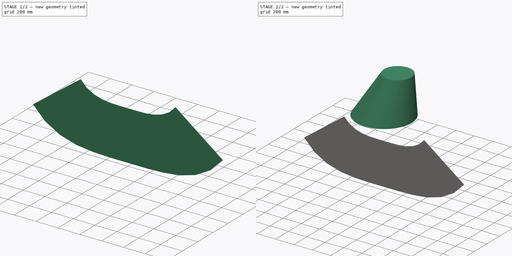
[diagram: build sequence overview — one tinted view per stage of 2, left to right]
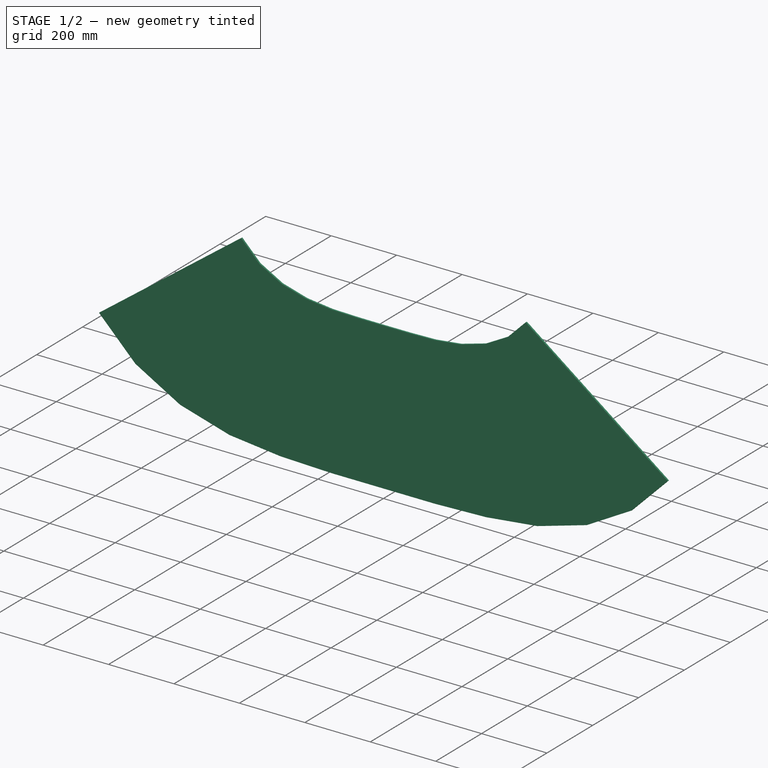
[diagram: stage 1 of 2 — iso view after this stage's code; geometry added in this stage tinted green]
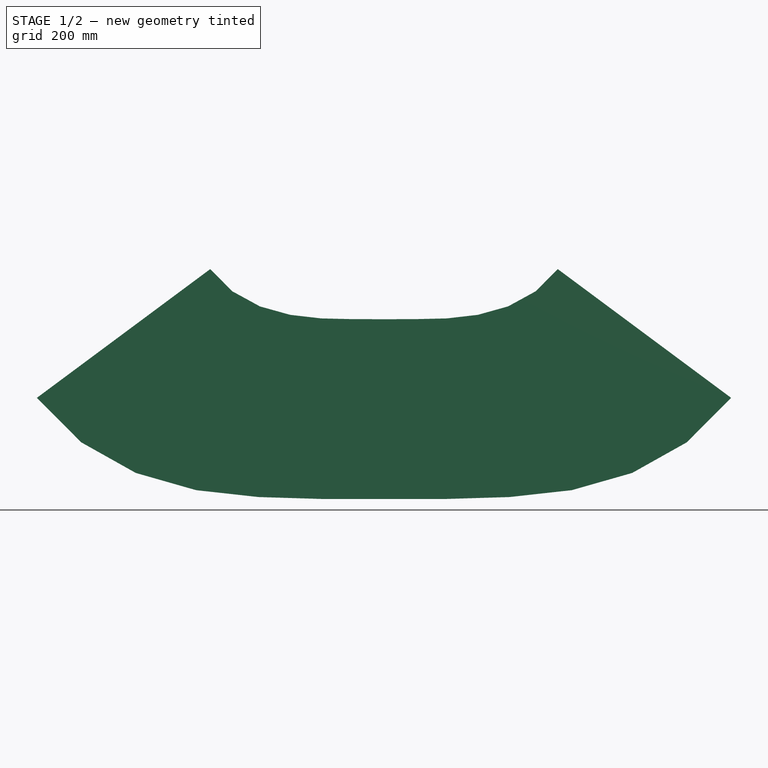
[diagram: stage 1 of 2 — front view after this stage's code; geometry added in this stage tinted green]
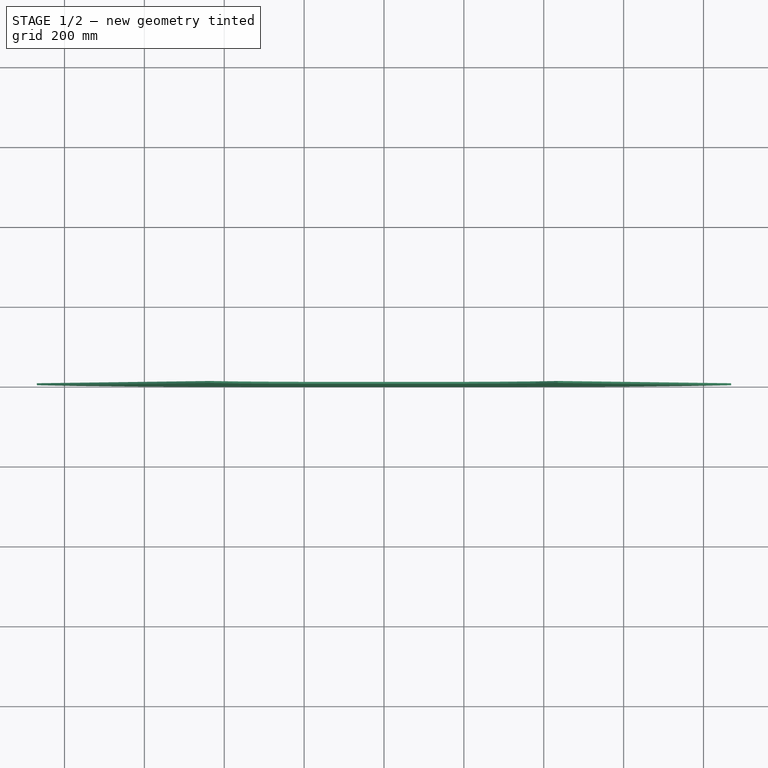
[diagram: stage 1 of 2 — top view after this stage's code; geometry added in this stage tinted green]
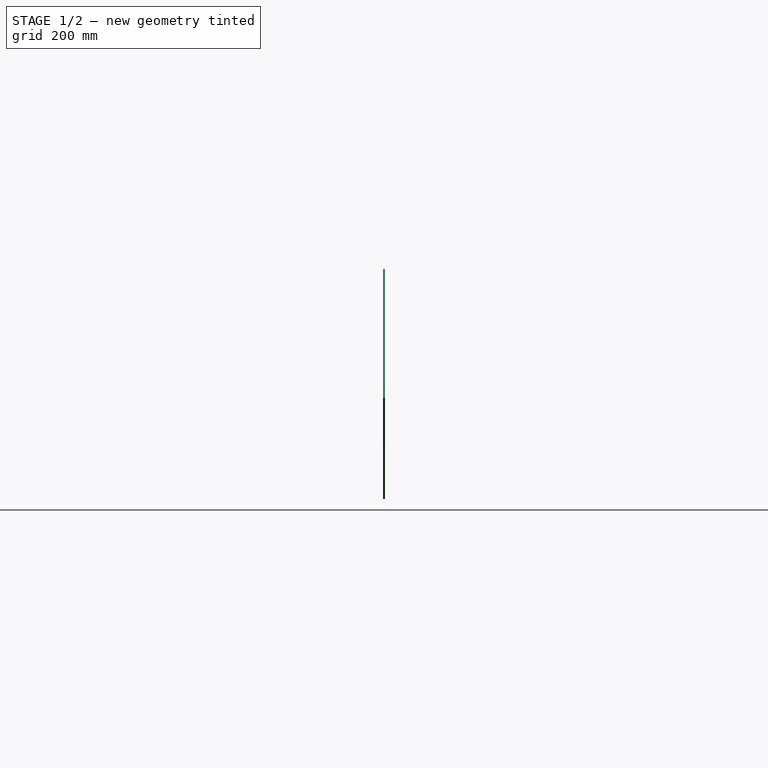
[diagram: stage 1 of 2 — right view after this stage's code; geometry added in this stage tinted green]
FCSTD DOCUMENT  (FreeCAD 0.18.2R)
Label: REDUÇÃO EXCENTRICA_1
License: All rights reserved
LicenseURL: http://en.wikipedia.org/wiki/All_rights_reserved
objects: App::FeaturePython×30, Part::Feature×11, Part::Mirroring×11, Part::RegularPolygon×2, Part::Loft×2, Part::Circle×2, Sketcher::SketchObject×1, PartDesign::Pad×1, PartDesign::Mirrored×1, PartDesign::Body×1, Part::Compound×1
note: 34 computed .brp shape members not serialized (recipe doc carries the construction recipe); baked Part::Feature solids carry a one-line shape summary decoded from their .brp

FEATURE [App::FeaturePython] Dimension013  # Draft dimension (typed FeaturePython)
  Diameter = false
  Dimline = (133,210,450)
  Direction = (0,0,0)
  Distance = 299.736
  End = (302.177,-2.437,453.784)
  Normal = (0,0,1)
  Start = (2.44333,-3.08407,453.071)
FEATURE [App::FeaturePython] Dimension014  # Draft dimension (typed FeaturePython)
  Diameter = true
  Dimline = (0,-350,0)
  Direction = (0,0,0)
  Distance = 600
  End = (-300,0,0)
  Normal = (0,0,1)
  Start = (300,0,0)
FEATURE [Sketcher::SketchObject] Sketch
  MapMode = 5
  Placement = pos=(0,0,0) rot=(1,0,0;1.5708rad)
  Support = -> [XZ_Plane]
  sketch-geometry (25):
    g0: LineSegment StartX=0 StartY=-258.7 StartZ=0 EndX=0 EndY=-708.7 EndZ=0
    g1: LineSegment [constr] StartX=0 StartY=-708.7 StartZ=0 EndX=-78.5397 EndY=-258.499 EndZ=0
    g2: LineSegment StartX=-78.5397 StartY=-258.499 StartZ=0 EndX=0 EndY=-258.7 EndZ=0
    g3: LineSegment [constr] StartX=-78.5397 StartY=-258.499 StartZ=0 EndX=-157.08 EndY=-708.7 EndZ=0
    g4: LineSegment StartX=-157.08 StartY=-708.7 StartZ=0 EndX=0 EndY=-708.7 EndZ=0
    g5: LineSegment [constr] StartX=-157.08 StartY=-708.7 StartZ=0 EndX=-157.059 EndY=-256.7 EndZ=0
    g6: LineSegment StartX=-157.059 StartY=-256.7 StartZ=0 EndX=-78.5397 EndY=-258.499 EndZ=0
    g7: LineSegment [constr] StartX=-157.059 StartY=-256.7 StartZ=0 EndX=-314.088 EndY=-703.934 EndZ=0
    g8: LineSegment StartX=-314.088 StartY=-703.934 StartZ=0 EndX=-157.08 EndY=-708.7 EndZ=0
    g9: LineSegment [constr] StartX=-314.088 StartY=-703.934 StartZ=0 EndX=-235.085 EndY=-247.724 EndZ=0
    g10: LineSegment StartX=-235.085 StartY=-247.724 StartZ=0 EndX=-157.059 EndY=-256.7 EndZ=0
    g11: LineSegment [constr] StartX=-235.085 StartY=-247.724 StartZ=0 EndX=-470.221 EndY=-686.717 EndZ=0
    g12: LineSegment StartX=-470.221 StartY=-686.717 StartZ=0 EndX=-314.088 EndY=-703.934 EndZ=0
    g13: LineSegment [constr] StartX=-470.221 StartY=-686.717 StartZ=0 EndX=-310.724 EndY=-226.576 EndZ=0
    g14: LineSegment StartX=-310.724 StartY=-226.576 StartZ=0 EndX=-235.085 EndY=-247.724 EndZ=0
    g15: LineSegment [constr] StartX=-310.724 StartY=-226.576 StartZ=0 EndX=-621.283 EndY=-643.653 EndZ=0
    g16: LineSegment StartX=-621.283 StartY=-643.653 StartZ=0 EndX=-470.221 EndY=-686.717 EndZ=0
    g17: LineSegment [constr] StartX=-621.283 StartY=-643.653 StartZ=0 EndX=-379.622 EndY=-188.872 EndZ=0
    g18: LineSegment StartX=-379.622 StartY=-188.872 StartZ=0 EndX=-310.724 EndY=-226.576 EndZ=0
    g19: LineSegment [constr] StartX=-379.622 StartY=-188.872 StartZ=0 EndX=-758.286 EndY=-566.813 EndZ=0
    g20: LineSegment StartX=-758.286 StartY=-566.813 StartZ=0 EndX=-621.283 EndY=-643.653 EndZ=0
    g21: LineSegment [constr] StartX=-758.286 StartY=-566.813 StartZ=0 EndX=-434.915 EndY=-133.094 EndZ=0
    g22: LineSegment StartX=-434.915 StartY=-133.094 StartZ=0 EndX=-379.622 EndY=-188.872 EndZ=0
    g23: LineSegment StartX=-434.915 StartY=-133.094 StartZ=0 EndX=-869.252 EndY=-455.634 EndZ=0
    g24: LineSegment StartX=-869.252 StartY=-455.634 StartZ=0 EndX=-758.286 EndY=-566.813 EndZ=0
  constraints (64):
    c: Vertical(g0)
    c: Coincident(g0,g1)
    c: Coincident(g1,g2)
    c: Coincident(g2,g0)
    c: DistanceY(g0,g0) = 450
    c: Distance(g1) = 457
    c: Distance(g2) = 78.54  'diam * pi /12 = step'
    c: Coincident(g1,g3)
    c: Coincident(g3,g4)
    c: Coincident(g4,g0)
    c: Distance(g3) = 457
    c: Distance(g4) = 157.08  'diam*pi/12=step'
    c: Coincident(g5,g6)
    c: Coincident(g1,g6)
    c: Coincident(g3,g5)
    c: Distance(g5) = 452
    c: Equal(g6,g2)
    c: Coincident(g5,g7)
    c: Coincident(g7,g8)
    c: Coincident(g8,g3)
    c: Equal(g8,g4)
    c: Distance(g7) = 474
    c: Coincident(g7,g9)
    c: Coincident(g9,g10)
    c: Coincident(g10,g5)
    c: Equal(g6,g10)
    c: Distance(g9) = 463
    c: Coincident(g9,g11)
    c: Coincident(g11,g12)
    c: Coincident(g12,g7)
    c: Equal(g12,g8)
    c: Distance(g11) = 498
    c: Coincident(g11,g13)
    c: Coincident(g13,g14)
    c: Coincident(g14,g9)
    c: Equal(g14,g10)
    c: Distance(g13) = 487
    c: Coincident(g13,g15)
    c: Coincident(g15,g16)
    c: Coincident(g16,g11)
    c: Equal(g12,g16)
    c: Distance(g15) = 520
    c: Coincident(g15,g17)
    c: Coincident(g17,g18)
    c: Coincident(g18,g13)
    c: Equal(g18,g14)
    c: Distance(g17) = 515
    c: Coincident(g17,g19)
    c: Coincident(g19,g20)
    c: Coincident(g20,g15)
    c: Equal(g16,g20)
    c: Distance(g19) = 535
    c: Coincident(g19,g21)
    c: Coincident(g21,g22)
    c: Coincident(g22,g17)
    c: Equal(g22,g18)
    c: Distance(g21) = 541
    c: Coincident(g21,g23)
    c: Coincident(g23,g24)
    c: Coincident(g19,g24)
    c: Equal(g20,g24)
    c: Distance(g23) = 541
    c: PointOnObject(g0,g-2)
    c: DistanceY(g0,g-1) = 258.7
FEATURE [PartDesign::Pad] Pad
  Length = 5
  Length2 = 100
  Placement = pos=(0,0,0) rot=(1,0,0;1.5708rad)
  Profile = -> Sketch
  Reversed = true
  Type = 0
FEATURE [PartDesign::Mirrored] Mirrored
  BaseFeature = -> Pad
  MirrorPlane = -> Sketch [V_Axis]
  Originals = -> [Pad]
  Placement = pos=(0,0,0) rot=(1,0,0;1.5708rad)
FEATURE [PartDesign::Body] Body
  Group = -> [Sketch,Pad,Mirrored]
  Origin = -> Origin
  Tip = -> Mirrored
FEATURE [Part::Feature] Edge
  shape: bbox 78.54 x 2e-07 x 450.2 mm, 0 faces, 0 solids (baked)
FEATURE [Part::Feature] Edge001
  shape: bbox 78.54 x 2e-07 x 450.2 mm, 0 faces, 0 solids (baked)
FEATURE [Part::Feature] Edge002
  shape: bbox 0.02088 x 2e-07 x 452 mm, 0 faces, 0 solids (baked)
FEATURE [Part::Feature] Edge003
  shape: bbox 157 x 2e-07 x 447.2 mm, 0 faces, 0 solids (baked)
FEATURE [Part::Feature] Edge004
  shape: bbox 79 x 2e-07 x 456.2 mm, 0 faces, 0 solids (baked)
FEATURE [Part::Feature] Edge005
  shape: bbox 235.1 x 2e-07 x 439 mm, 0 faces, 0 solids (baked)
FEATURE [Part::Feature] Edge006
  shape: bbox 159.5 x 2e-07 x 460.1 mm, 0 faces, 0 solids (baked)
FEATURE [Part::Feature] Edge007
  shape: bbox 310.6 x 2e-07 x 417.1 mm, 0 faces, 0 solids (baked)
FEATURE [Part::Feature] Edge008
  shape: bbox 241.7 x 2e-07 x 454.8 mm, 0 faces, 0 solids (baked)
FEATURE [Part::Feature] Edge009
  shape: bbox 378.7 x 2e-07 x 377.9 mm, 0 faces, 0 solids (baked)
FEATURE [Part::Feature] Edge010
  shape: bbox 323.4 x 2e-07 x 433.7 mm, 0 faces, 0 solids (baked)
FEATURE [Part::Mirroring] Part__Mirroring  label="Edge (Mirror #1)"
  Base = (0,0,0)
  Normal = (1,0,0)
  Source = -> Edge
FEATURE [Part::Mirroring] Part__Mirroring001  label="Edge001 (Mirror #2)"
  Base = (0,0,0)
  Normal = (1,0,0)
  Source = -> Edge001
FEATURE [Part::Mirroring] Part__Mirroring002  label="Edge002 (Mirror #3)"
  Base = (0,0,0)
  Normal = (1,0,0)
  Source = -> Edge002
FEATURE [Part::Mirroring] Part__Mirroring003  label="Edge003 (Mirror #4)"
  Base = (0,0,0)
  Normal = (1,0,0)
  Source = -> Edge003
FEATURE [Part::Mirroring] Part__Mirroring004  label="Edge004 (Mirror #5)"
  Base = (0,0,0)
  Normal = (1,0,0)
  Source = -> Edge004
FEATURE [Part::Mirroring] Part__Mirroring005  label="Edge005 (Mirror #6)"
  Base = (0,0,0)
  Normal = (1,0,0)
  Source = -> Edge005
FEATURE [Part::Mirroring] Part__Mirroring006  label="Edge006 (Mirror #7)"
  Base = (0,0,0)
  Normal = (1,0,0)
  Source = -> Edge006
FEATURE [Part::Mirroring] Part__Mirroring007  label="Edge007 (Mirror #8)"
  Base = (0,0,0)
  Normal = (1,0,0)
  Source = -> Edge007
FEATURE [Part::Mirroring] Part__Mirroring008  label="Edge008 (Mirror #9)"
  Base = (0,0,0)
  Normal = (1,0,0)
  Source = -> Edge008
FEATURE [Part::Mirroring] Part__Mirroring009  label="Edge009 (Mirror #10)"
  Base = (0,0,0)
  Normal = (1,0,0)
  Source = -> Edge009
FEATURE [Part::Mirroring] Part__Mirroring010  label="Edge010 (Mirror #11)"
  Base = (0,0,0)
  Normal = (1,0,0)
  Source = -> Edge010
FEATURE [Part::Compound] Compound
  Links = -> [Part__Mirroring,Part__Mirroring009,Part__Mirroring007,Part__Mirroring010,Part__Mirroring001,Part__Mirroring004,Part__Mirroring006,Part__Mirroring008,Part__Mirroring003,Part__Mirroring005,Part__Mirroring002]
FEATURE [App::FeaturePython] Dimension015  # Draft dimension (typed FeaturePython)
  Diameter = false
  Dimline = (0,6.1164e-05,-513.081)
  Direction = (0,0,0)
  Distance = 450
  End = (0,0,-708)
  Normal = (0,-1,0)
  Start = (0,0,-258)
FEATURE [App::FeaturePython] Dimension016  # Draft dimension (typed FeaturePython)
  Diameter = false
  Dimline = (-39.9976,-3.202e-13,-479.429)
  Direction = (0,0,0)
  Distance = 457
  End = (0,-4.738e-13,-708.701)
  Normal = (0,-1,0)
  Start = (-78.5397,-1.722e-13,-258.5)
FEATURE [App::FeaturePython] Dimension017  # Draft dimension (typed FeaturePython)
  Diameter = false
  Dimline = (-117.204,-3.207e-13,-480.128)
  Direction = (0,0,0)
  Distance = 457
  End = (-157.08,-4.738e-13,-708.701)
  Normal = (0,-1,0)
  Start = (-78.5397,-1.722e-13,-258.5)
FEATURE [App::FeaturePython] Dimension018  # Draft dimension (typed FeaturePython)
  Diameter = false
  Dimline = (-157.079,-4.604e-13,-688.63)
  Direction = (0,0,0)
  Distance = 452.25
  End = (-156.964,-4.9939,-708.923)
  Normal = (0,-1,0)
  Start = (-157.059,-1.71e-13,-256.701)
FEATURE [App::FeaturePython] Dimension019  # Draft dimension (typed FeaturePython)
  Diameter = false
  Dimline = (-238.96,-3.268e-13,-489.963)
  Direction = (0,0,0)
  Distance = 474
  End = (-314.088,-4.689e-13,-703.934)
  Normal = (0,-1,0)
  Start = (-157.059,-1.71e-13,-256.701)
FEATURE [App::FeaturePython] Dimension020  # Draft dimension (typed FeaturePython)
  Diameter = false
  Dimline = (-310.972,-4.569e-13,-685.942)
  Direction = (0,0,0)
  Distance = 463.449
  End = (-314.108,-4.98165,-704.359)
  Normal = (0,-1,0)
  Start = (-235.085,-1.65e-13,-247.724)
FEATURE [App::FeaturePython] Dimension021  # Draft dimension (typed FeaturePython)
  Diameter = false
  Dimline = (-389.723,-3.583e-13,-536.43)
  Direction = (0,0,0)
  Distance = 498
  End = (-470.221,-4.574e-13,-686.717)
  Normal = (0,-1,0)
  Start = (-235.085,-1.65e-13,-247.724)
FEATURE [App::FeaturePython] Dimension022  # Draft dimension (typed FeaturePython)
  Diameter = false
  Dimline = (-371.933,-2.684e-13,-403.162)
  Direction = (0,0,0)
  Distance = 487
  End = (-310.724,-1.532e-13,-226.576)
  Normal = (0,-1,0)
  Start = (-470.221,-4.574e-13,-686.717)
FEATURE [App::FeaturePython] Dimension023  # Draft dimension (typed FeaturePython)
  Diameter = false
  Dimline = (-490.804,-3.13e-13,-468.422)
  Direction = (0,0,0)
  Distance = 520
  End = (-621.283,-4.288e-13,-643.653)
  Normal = (0,-1,0)
  Start = (-310.724,-1.532e-13,-226.576)
FEATURE [App::FeaturePython] Dimension024  # Draft dimension (typed FeaturePython)
  Diameter = false
  Dimline = (-518.614,-2.997e-13,-450.441)
  Direction = (0,0,0)
  Distance = 515
  End = (-621.283,-4.288e-13,-643.653)
  Normal = (0,-1,0)
  Start = (-379.622,-1.261e-13,-188.873)
FEATURE [App::FeaturePython] Dimension025  # Draft dimension (typed FeaturePython)
  Diameter = false
  Dimline = (-636.555,-2.967e-13,-445.315)
  Direction = (0,0,0)
  Distance = 535
  End = (-758.286,-3.776e-13,-566.813)
  Normal = (0,-1,0)
  Start = (-379.622,-1.261e-13,-188.873)
FEATURE [App::FeaturePython] Dimension026  # Draft dimension (typed FeaturePython)
  Diameter = false
  Dimline = (-614.554,-2.501e-13,-374.035)
  Direction = (0,0,0)
  Distance = 541
  End = (-434.915,-9.08e-14,-133.094)
  Normal = (0,-1,0)
  Start = (-758.286,-3.776e-13,-566.813)
FEATURE [App::FeaturePython] Dimension027  # Draft dimension (typed FeaturePython)
  Diameter = false
  Dimline = (-610.938,3.14486e-05,-263.81)
  Direction = (0,0,0)
  Distance = 541
  End = (-434.915,-9.08e-14,-133.094)
  Normal = (0,-1,0)
  Start = (-869.252,5.43159e-05,-455.635)
FEATURE [App::FeaturePython] Dimension028  # Draft dimension (typed FeaturePython)
  Diameter = false
  Dimline = (-13.575,0,-764.416)
  Direction = (0,0,0)
  Distance = 157.08
  End = (0,-4.738e-13,-708.701)
  Normal = (0,-1,0)
  Start = (-157.08,-4.738e-13,-708.701)
FEATURE [App::FeaturePython] Dimension029  # Draft dimension (typed FeaturePython)
  Diameter = false
  Dimline = (-18.1116,0,-215.741)
  Direction = (0,0,0)
  Distance = 78.5413
  End = (0,0,-258)
  Normal = (0,-1,0)
  Start = (-78.5397,-1.72e-13,-258.5)
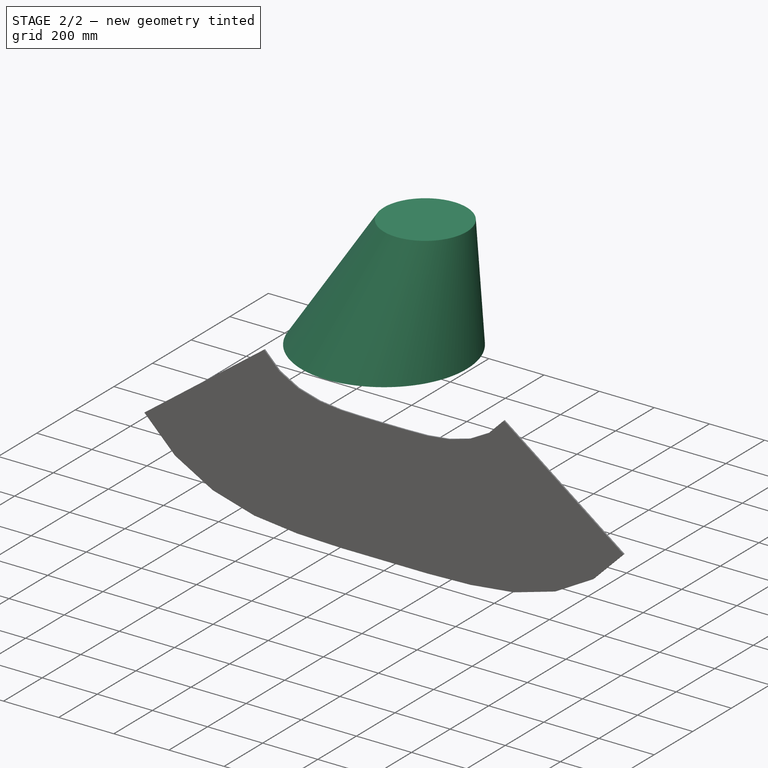
[diagram: stage 2 of 2 — iso view after this stage's code; geometry added in this stage tinted green]
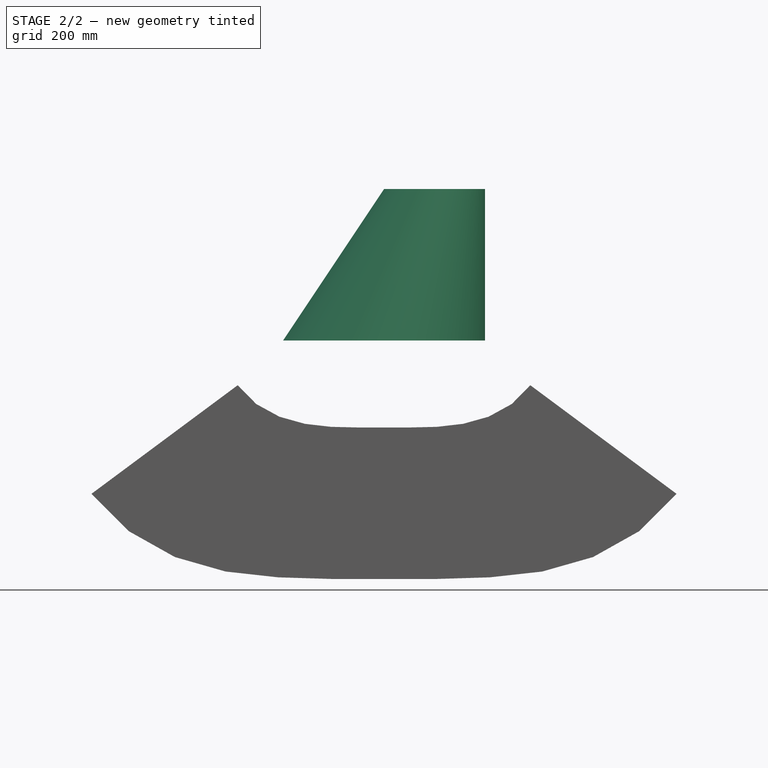
[diagram: stage 2 of 2 — front view after this stage's code; geometry added in this stage tinted green]
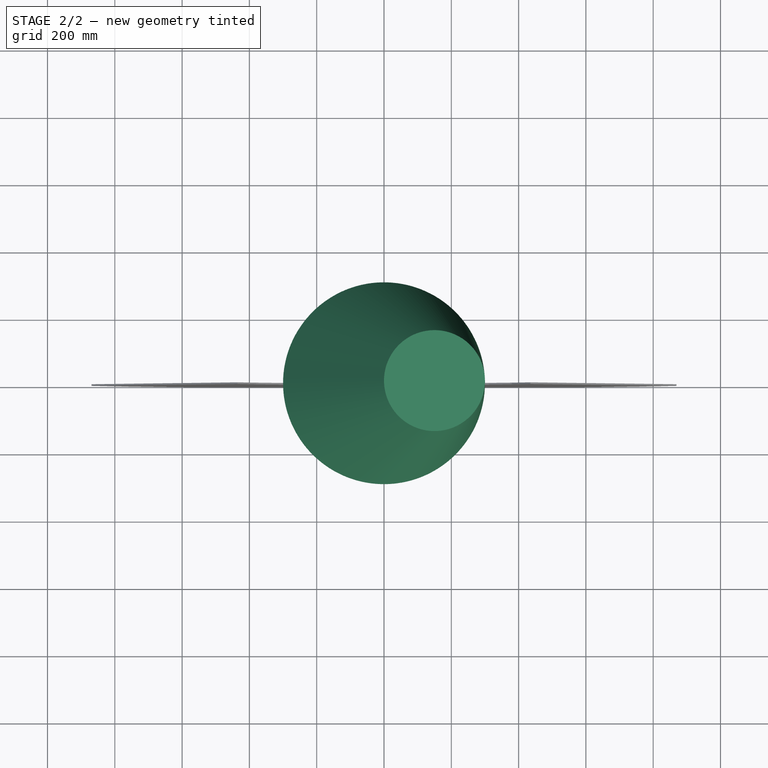
[diagram: stage 2 of 2 — top view after this stage's code; geometry added in this stage tinted green]
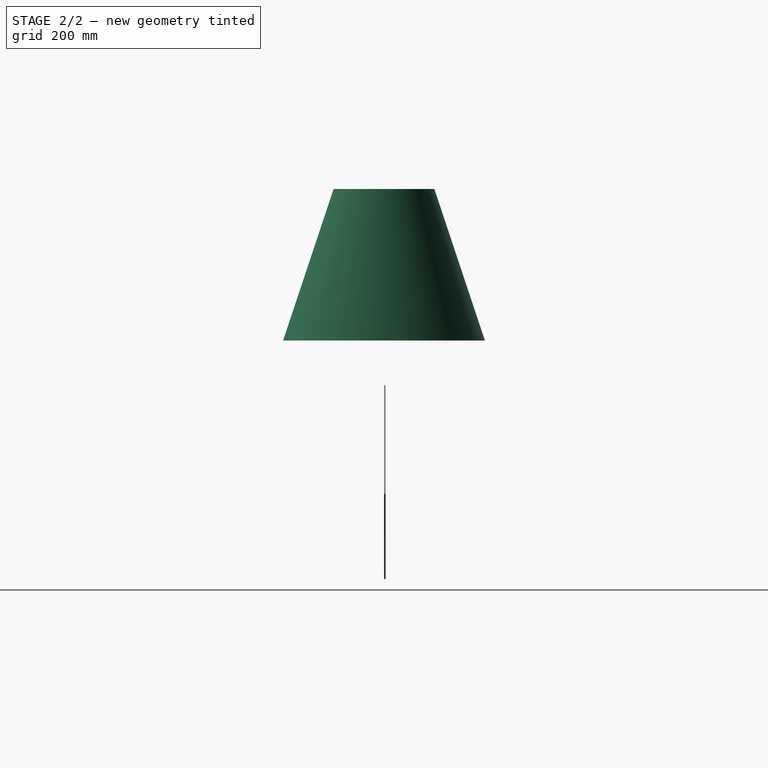
[diagram: stage 2 of 2 — right view after this stage's code; geometry added in this stage tinted green]
FEATURE [Part::RegularPolygon] RegularPolygon  label="Regular polygon"
  AttacherType = Attacher::AttachEngine3D
  Circumradius = 150
  Placement = pos=(150,0,450) rot=(0,0,1;0rad)
  Polygon = 12
FEATURE [Part::RegularPolygon] RegularPolygon001  label="Regular polygon001"
  AttacherType = Attacher::AttachEngine3D
  Circumradius = 300
  Polygon = 12
FEATURE [Part::Loft] Loft
  Closed = false
  MaxDegree = 5
  Ruled = false
  Sections = -> [RegularPolygon,RegularPolygon001]
  Solid = false
FEATURE [App::FeaturePython] Dimension  # Draft dimension (typed FeaturePython)
  Diameter = false
  Dimline = (300,0,23.8035)
  Direction = (0,0,0)
  Distance = 449.937
  End = (300,0,0.0628842)
  Normal = (0.965926,-0.258819,0)
  Start = (300,0,450)
FEATURE [App::FeaturePython] Dimension001  # Draft dimension (typed FeaturePython)
  Diameter = false
  Dimline = (279.904,-75,450)
  Direction = (0,0,0)
  Distance = 456.65
  End = (279.904,-75,450)
  Normal = (0.965926,-0.258819,0)
  Start = (300,0,0)
FEATURE [App::FeaturePython] Dimension002  # Draft dimension (typed FeaturePython)
  Diameter = false
  Dimline = (261.094,-145.198,28.8102)
  Direction = (0,0,0)
  Distance = 456.65
  End = (259.808,-150,0)
  Normal = (0.965926,-0.258819,0)
  Start = (279.904,-75,450)
FEATURE [App::FeaturePython] Dimension003  # Draft dimension (typed FeaturePython)
  Diameter = false
  Dimline = (259.823,-149.943,0.339579)
  Direction = (0,0,0)
  Distance = 451.509
  End = (259.82,-149.954,0.276133)
  Normal = (0.70449,-0.70449,0.0859537)
  Start = (225.187,-129.717,450)
FEATURE [App::FeaturePython] Dimension004  # Draft dimension (typed FeaturePython)
  Diameter = false
  Dimline = (151.282,-257.587,7.69156)
  Direction = (0,0,0)
  Distance = 474.342
  End = (150,-259.808,0)
  Normal = (0.70449,-0.70449,0.0859537)
  Start = (225,-129.904,450)
FEATURE [App::FeaturePython] Dimension005  # Draft dimension (typed FeaturePython)
  Diameter = false
  Dimline = (150,-259.808,0)
  Direction = (0,0,0)
  Distance = 463.15
  End = (150.009,-259.793,0.0513431)
  Normal = (0.251916,-0.940163,0.229416)
  Start = (150,-150,450)
FEATURE [App::FeaturePython] Dimension006  # Draft dimension (typed FeaturePython)
  Diameter = false
  Dimline = (4.69167,-295.308,14.075)
  Direction = (0,0,0)
  Distance = 497.544
  End = (-3.126e-13,-300,0)
  Normal = (0.251916,-0.940163,0.229416)
  Start = (150.132,-149.964,450)
FEATURE [App::FeaturePython] Dimension007  # Draft dimension (typed FeaturePython)
  Diameter = false
  Dimline = (75,-129.904,450)
  Direction = (0,0,0)
  Distance = 486.554
  End = (75,-129.904,450)
  Normal = (-0.23962,-0.894274,0.377964)
  Start = (0.101138,-299.899,0.303415)
FEATURE [App::FeaturePython] Dimension008  # Draft dimension (typed FeaturePython)
  Diameter = false
  Dimline = (-138.223,-253.195,23.113)
  Direction = (0,0,0)
  Distance = 519.615
  End = (-150,-259.808,0)
  Normal = (-0.23962,-0.894274,0.377964)
  Start = (75,-129.904,450)
FEATURE [App::FeaturePython] Dimension009  # Draft dimension (typed FeaturePython)
  Diameter = false
  Dimline = (20.0962,-75,450)
  Direction = (0,0,0)
  Distance = 515.351
  End = (20.0962,-75,450)
  Normal = (-0.617565,-0.617565,0.487058)
  Start = (-150,-259.808,0)
FEATURE [App::FeaturePython] Dimension010  # Draft dimension (typed FeaturePython)
  Diameter = false
  Dimline = (-259.808,-150,0)
  Direction = (0,0,0)
  Distance = 535.038
  End = (-259.631,-150.074,0.13097)
  Normal = (-0.617565,-0.617565,0.487058)
  Start = (20.0962,-75,450)
FEATURE [App::FeaturePython] Dimension011  # Draft dimension (typed FeaturePython)
  Diameter = false
  Dimline = (-259.808,-150,0)
  Direction = (0,0,0)
  Distance = 540.757
  End = (-259.768,-149.989,0.0641266)
  Normal = (-0.812112,-0.217605,0.541408)
  Start = (0,1.137e-13,450)
FEATURE [App::FeaturePython] Dimension012  # Draft dimension (typed FeaturePython)
  Diameter = false
  Dimline = (-17.2925,1.202e-13,424.061)
  Direction = (0,0,0)
  Distance = 540.539
  End = (-0.135043,-0.150867,449.737)
  Normal = (-0.812112,-0.217605,0.541408)
  Start = (-300,2.274e-13,0)
FEATURE [Part::Circle] Circle
  Angle0 = 0
  Angle1 = 360
  AttacherType = Attacher::AttachEngine3D
  Placement = pos=(150,0,450) rot=(0,0,1;0rad)
  Radius = 150
FEATURE [Part::Circle] Circle001
  Angle0 = 0
  Angle1 = 360
  AttacherType = Attacher::AttachEngine3D
  Radius = 300
FEATURE [Part::Loft] Loft001
  Closed = false
  MaxDegree = 5
  Ruled = false
  Sections = -> [Circle,Circle001]
  Solid = true
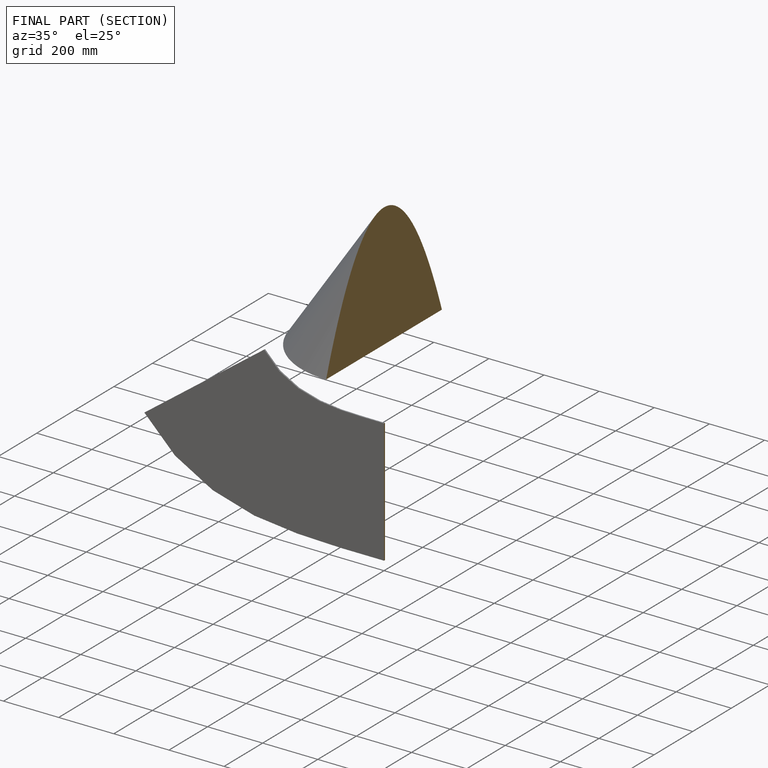
[diagram: finished part — half-section view (interior)]
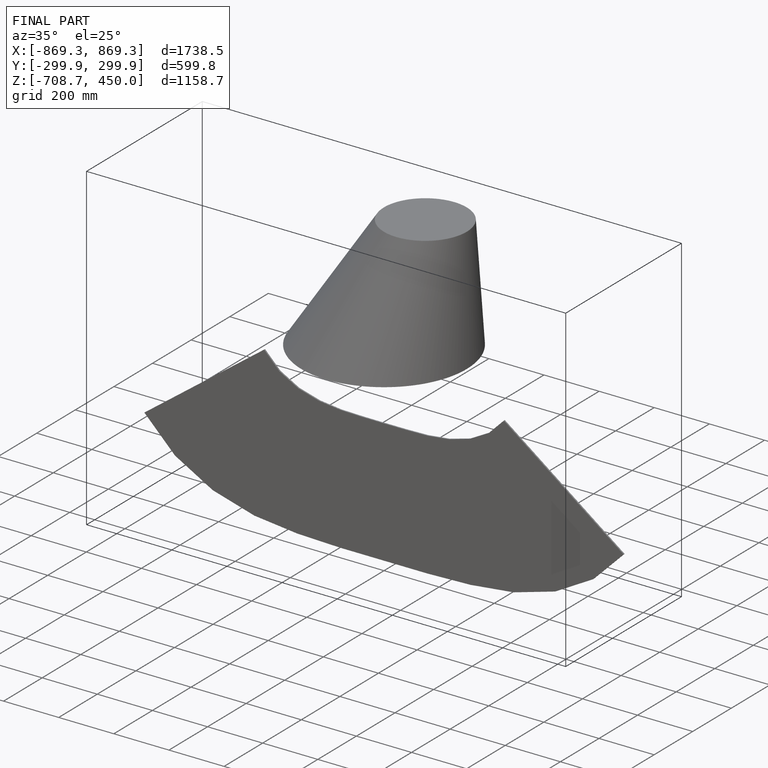
[diagram: finished part — iso view with bounding-box wireframe]
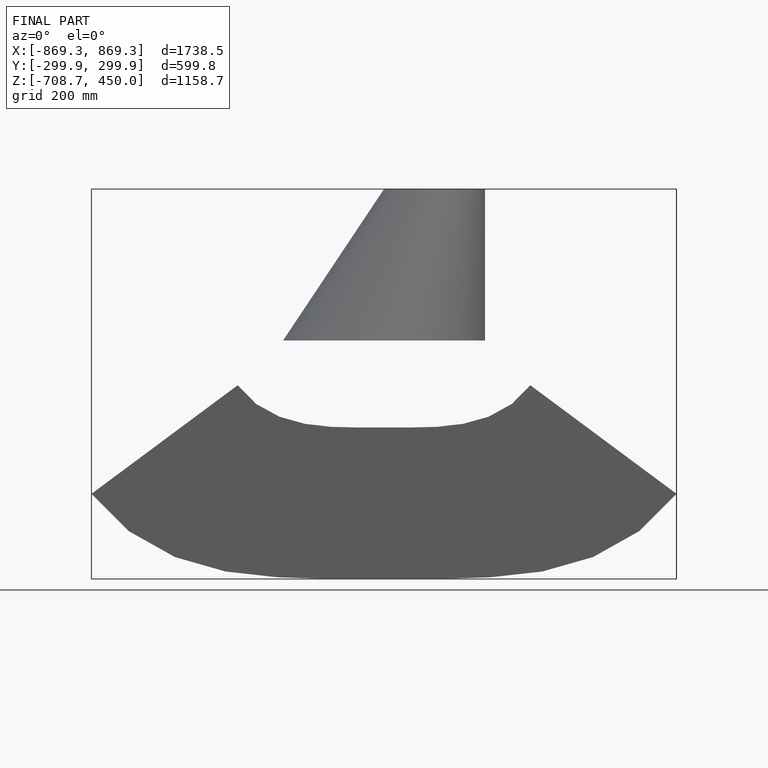
[diagram: finished part — front view with bounding-box wireframe]
